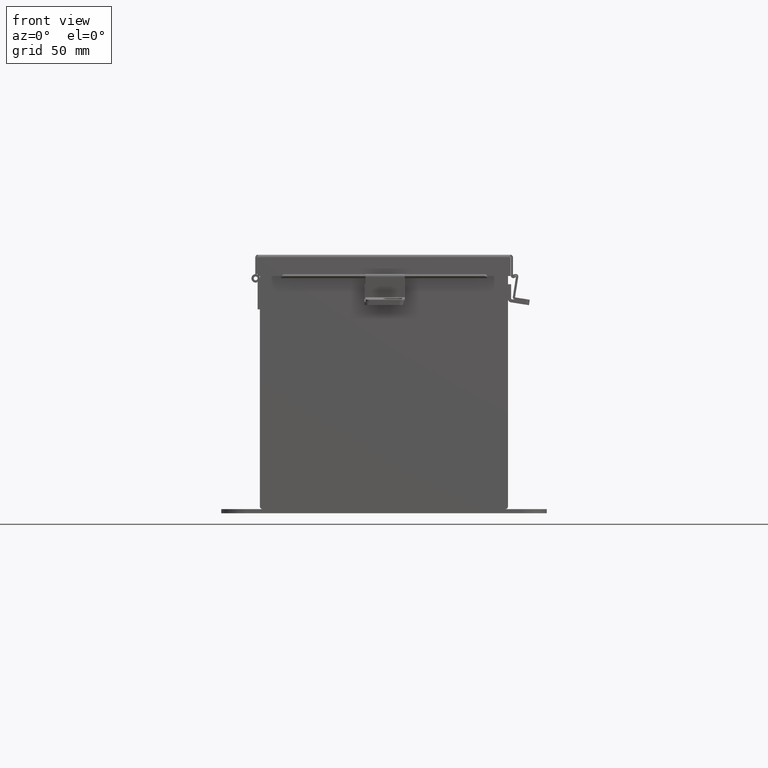
[diagram: clean part render]
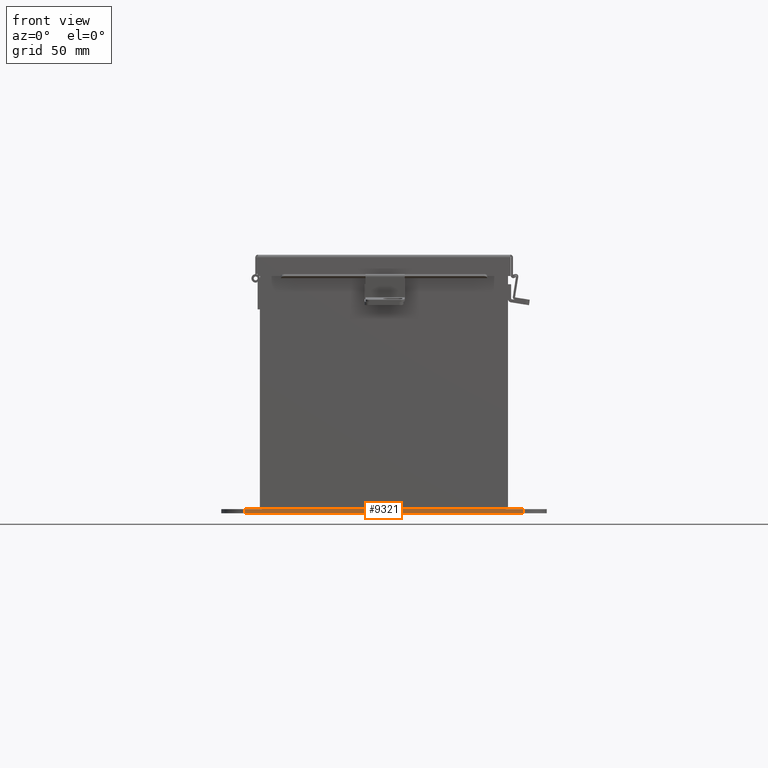
[diagram: same view with one face highlighted and labeled with its STEP entity id]
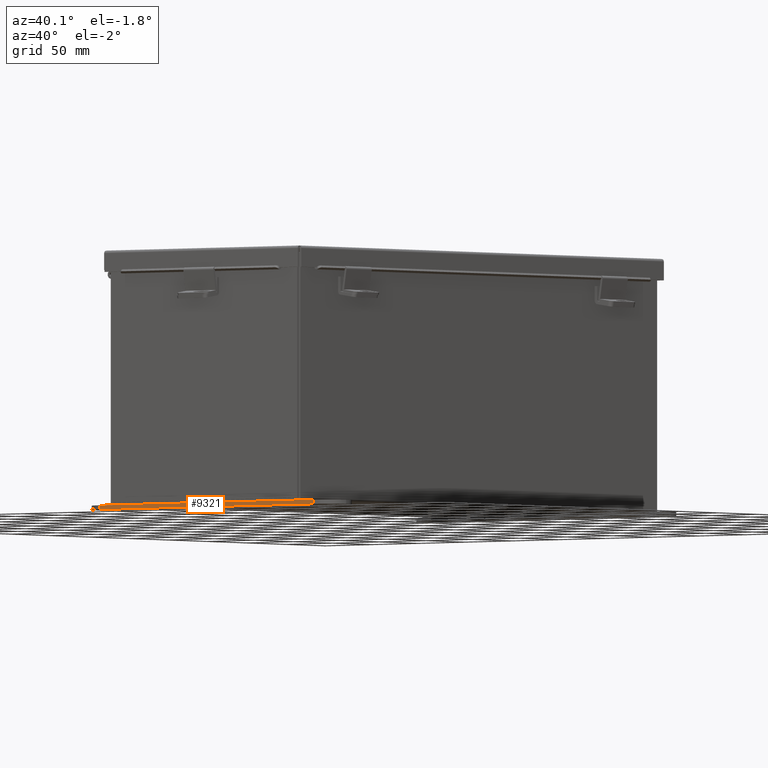
[diagram: same view with one face highlighted and labeled with its STEP entity id]
A machine part, front view. The second image highlights one B-rep face of the part: STEP entity #9321.
A second angle (auxiliary view) of the same face is appended — the face is thin or edge-on in the first view.
In plain terms, the highlighted planar face has unit normal (-0, -1, 0).
Its self-contained STEP definition (entity closure, byte-faithful):
#10 = DIRECTION ( 'NONE',  ( 1.000000000000000000, -1.214154663850783900E-016, 0.0000000000000000000 ) ) ;
#697 = CARTESIAN_POINT ( 'NONE',  ( -4.499999999999999100, -0.3379059350503874600, -0.1345000000000000100 ) ) ;
#1054 = CARTESIAN_POINT ( 'NONE',  ( -4.499999999999999100, -0.3379059350503874600, -0.1345000000000000100 ) ) ;
#1176 = DIRECTION ( 'NONE',  ( 0.0000000000000000000, 0.0000000000000000000, 1.000000000000000000 ) ) ;
#1433 = AXIS2_PLACEMENT_3D ( 'NONE', #10989, #2027, #12506 ) ;
#2027 = DIRECTION ( 'NONE',  ( -1.214154663850783900E-016, -1.000000000000000000, 0.0000000000000000000 ) ) ;
#2241 = LINE ( 'NONE', #11930, #17083 ) ;
#2954 = VECTOR ( 'NONE', #5457, 39.37007874015748100 ) ;
#3455 = PLANE ( 'NONE',  #1433 ) ;
#3738 = VERTEX_POINT ( 'NONE', #4191 ) ;
#3959 = CARTESIAN_POINT ( 'NONE',  ( -4.499999999999999100, -0.3379059350503874600, 0.0000000000000000000 ) ) ;
#4014 = ORIENTED_EDGE ( 'NONE', *, *, #16684, .F. ) ;
#4191 = CARTESIAN_POINT ( 'NONE',  ( 4.499999999999999100, -0.3379059350503885700, 0.0000000000000000000 ) ) ;
#4472 = ORIENTED_EDGE ( 'NONE', *, *, #9579, .F. ) ;
#4715 = ORIENTED_EDGE ( 'NONE', *, *, #17594, .T. ) ;
#5421 = FACE_OUTER_BOUND ( 'NONE', #18989, .T. ) ;
#5457 = DIRECTION ( 'NONE',  ( 1.000000000000000000, -1.214154663850783900E-016, 0.0000000000000000000 ) ) ;
#5664 = ORIENTED_EDGE ( 'NONE', *, *, #9631, .T. ) ;
#6570 = LINE ( 'NONE', #1054, #10116 ) ;
#8597 = CARTESIAN_POINT ( 'NONE',  ( 4.499999999999999100, -0.3379059350503885700, -0.1345000000000000100 ) ) ;
#9321 = ADVANCED_FACE ( 'NONE', ( #5421 ), #3455, .T. ) ;
#9579 = EDGE_CURVE ( 'NONE', #13737, #18085, #6570, .T. ) ;
#9605 = CARTESIAN_POINT ( 'NONE',  ( 4.499999999999999100, -0.3379059350503885700, -0.1345000000000000100 ) ) ;
#9631 = EDGE_CURVE ( 'NONE', #12617, #3738, #14040, .T. ) ;
#10116 = VECTOR ( 'NONE', #12995, 39.37007874015748100 ) ;
#10989 = CARTESIAN_POINT ( 'NONE',  ( -4.499999999999999100, -0.3379059350503874600, -0.1345000000000000100 ) ) ;
#11930 = CARTESIAN_POINT ( 'NONE',  ( -4.499999999999999100, -0.3379059350503874600, -0.1345000000000000100 ) ) ;
#12506 = DIRECTION ( 'NONE',  ( 1.000000000000000000, -1.214154663850783900E-016, 0.0000000000000000000 ) ) ;
#12617 = VERTEX_POINT ( 'NONE', #9605 ) ;
#12995 = DIRECTION ( 'NONE',  ( 0.0000000000000000000, 0.0000000000000000000, 1.000000000000000000 ) ) ;
#13136 = VECTOR ( 'NONE', #1176, 39.37007874015748100 ) ;
#13737 = VERTEX_POINT ( 'NONE', #697 ) ;
#13972 = CARTESIAN_POINT ( 'NONE',  ( -4.499999999999999100, -0.3379059350503874600, 0.0000000000000000000 ) ) ;
#14040 = LINE ( 'NONE', #8597, #13136 ) ;
#16684 = EDGE_CURVE ( 'NONE', #18085, #3738, #18731, .T. ) ;
#17083 = VECTOR ( 'NONE', #10, 39.37007874015748100 ) ;
#17594 = EDGE_CURVE ( 'NONE', #13737, #12617, #2241, .T. ) ;
#18085 = VERTEX_POINT ( 'NONE', #13972 ) ;
#18731 = LINE ( 'NONE', #3959, #2954 ) ;
#18989 = EDGE_LOOP ( 'NONE', ( #4014, #4472, #4715, #5664 ) ) ;